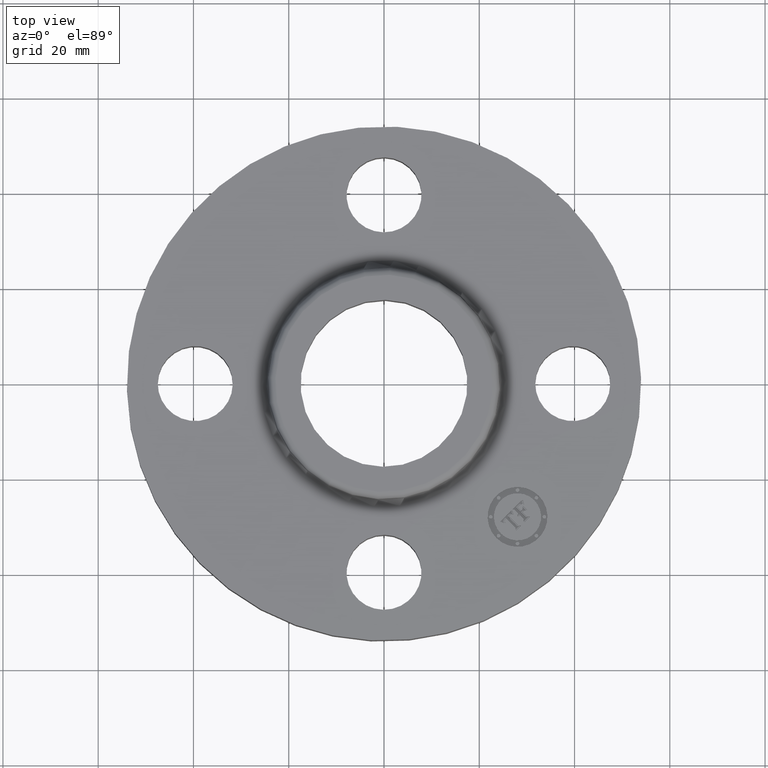
[diagram: clean part render]
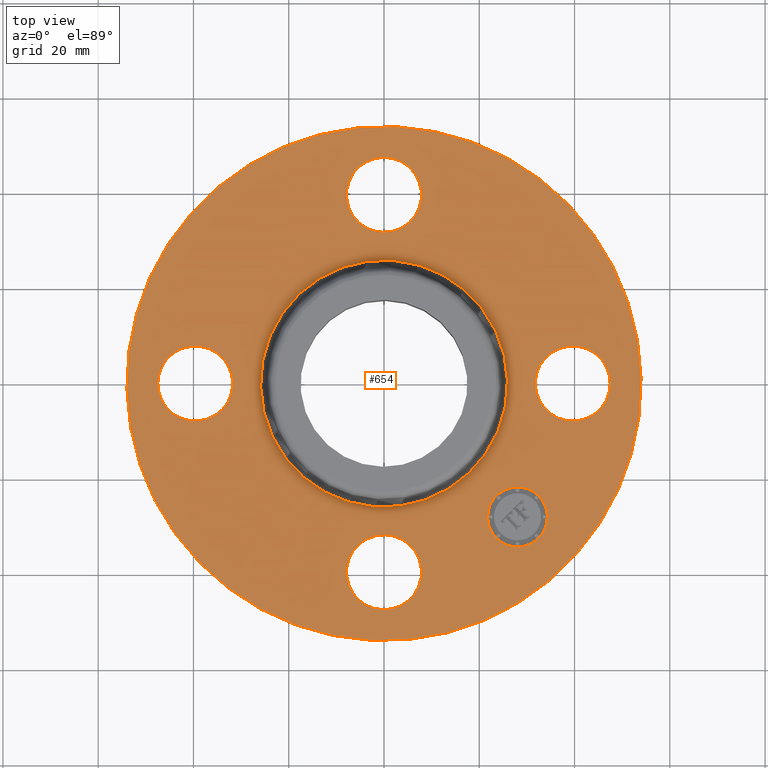
[diagram: same view with one face highlighted and labeled with its STEP entity id]
A machine part, top view. The second image highlights one B-rep face of the part: STEP entity #654.
In plain terms, the highlighted planar face has unit normal (0, 0, -1).
Its self-contained STEP definition (entity closure, byte-faithful):
#65=AXIS2_PLACEMENT_3D('Circle Axis2P3D',#63,#64,$) ;
#82=AXIS2_PLACEMENT_3D('Circle Axis2P3D',#80,#81,$) ;
#115=AXIS2_PLACEMENT_3D('Circle Axis2P3D',#113,#114,$) ;
#139=AXIS2_PLACEMENT_3D('Circle Axis2P3D',#137,#138,$) ;
#156=AXIS2_PLACEMENT_3D('Circle Axis2P3D',#154,#155,$) ;
#191=AXIS2_PLACEMENT_3D('Circle Axis2P3D',#189,#190,$) ;
#499=AXIS2_PLACEMENT_3D('Circle Axis2P3D',#497,#498,$) ;
#511=AXIS2_PLACEMENT_3D('Circle Axis2P3D',#509,#510,$) ;
#542=AXIS2_PLACEMENT_3D('Circle Axis2P3D',#540,#541,$) ;
#554=AXIS2_PLACEMENT_3D('Circle Axis2P3D',#552,#553,$) ;
#585=AXIS2_PLACEMENT_3D('Circle Axis2P3D',#583,#584,$) ;
#597=AXIS2_PLACEMENT_3D('Circle Axis2P3D',#595,#596,$) ;
#610=AXIS2_PLACEMENT_3D('Plane Axis2P3D',#607,#608,#609) ;
#638=AXIS2_PLACEMENT_3D('Circle Axis2P3D',#636,#637,$) ;
#647=AXIS2_PLACEMENT_3D('Circle Axis2P3D',#645,#646,$) ;
#46=CARTESIAN_POINT('Vertex',(1.28794940582,0.148621916968,0.560000000002)) ;
#60=CARTESIAN_POINT('Vertex',(1.83205059419,-0.148621916968,0.560000000002)) ;
#63=CARTESIAN_POINT('Axis2P3D Location',(1.56000000001,0.,0.560000000002)) ;
#80=CARTESIAN_POINT('Axis2P3D Location',(1.56000000001,0.,0.560000000002)) ;
#110=CARTESIAN_POINT('Vertex',(-1.01877926954,-1.86486294402,0.560000000002)) ;
#113=CARTESIAN_POINT('Axis2P3D Location',(0.,0.,0.560000000002)) ;
#117=CARTESIAN_POINT('Vertex',(1.01877926954,1.86486294402,0.560000000002)) ;
#137=CARTESIAN_POINT('Axis2P3D Location',(0.,0.,0.560000000002)) ;
#154=CARTESIAN_POINT('Axis2P3D Location',(0.,0.,0.560000000002)) ;
#158=CARTESIAN_POINT('Vertex',(0.489179920005,0.895437837278,0.560000000002)) ;
#160=CARTESIAN_POINT('Vertex',(-0.489179920005,-0.895437837278,0.560000000002)) ;
#189=CARTESIAN_POINT('Axis2P3D Location',(0.,0.,0.560000000002)) ;
#487=CARTESIAN_POINT('Vertex',(-0.148621916968,1.28794940582,0.560000000002)) ;
#494=CARTESIAN_POINT('Vertex',(0.148621916968,1.83205059419,0.560000000002)) ;
#497=CARTESIAN_POINT('Axis2P3D Location',(-2.86567351002E-016,1.56000000001,0.560000000002)) ;
#509=CARTESIAN_POINT('Axis2P3D Location',(-2.86567351002E-016,1.56000000001,0.560000000002)) ;
#530=CARTESIAN_POINT('Vertex',(-1.28794940582,-0.148621916968,0.560000000002)) ;
#537=CARTESIAN_POINT('Vertex',(-1.83205059419,0.148621916968,0.560000000002)) ;
#540=CARTESIAN_POINT('Axis2P3D Location',(-1.56000000001,-1.91044900668E-016,0.560000000002)) ;
#552=CARTESIAN_POINT('Axis2P3D Location',(-1.56000000001,-1.91044900668E-016,0.560000000002)) ;
#573=CARTESIAN_POINT('Vertex',(0.148621916968,-1.28794940582,0.560000000002)) ;
#580=CARTESIAN_POINT('Vertex',(-0.148621916968,-1.83205059419,0.560000000002)) ;
#583=CARTESIAN_POINT('Axis2P3D Location',(-1.84218784217E-016,-1.56000000001,0.560000000002)) ;
#595=CARTESIAN_POINT('Axis2P3D Location',(-1.84218784217E-016,-1.56000000001,0.560000000002)) ;
#607=CARTESIAN_POINT('Axis2P3D Location',(0.,2.12500000001,0.560000000002)) ;
#636=CARTESIAN_POINT('Axis2P3D Location',(1.10308657866,-1.10308657866,0.560000000002)) ;
#640=CARTESIAN_POINT('Vertex',(1.278095507,-0.928077650311,0.560000000002)) ;
#642=CARTESIAN_POINT('Vertex',(0.928077650311,-1.278095507,0.560000000002)) ;
#645=CARTESIAN_POINT('Axis2P3D Location',(1.10308657866,-1.10308657866,0.560000000002)) ;
#64=DIRECTION('Axis2P3D Direction',(0.,-0.,-0.0393700787402)) ;
#81=DIRECTION('Axis2P3D Direction',(0.,-0.,-0.0393700787402)) ;
#114=DIRECTION('Axis2P3D Direction',(0.,0.,-0.0393700787402)) ;
#138=DIRECTION('Axis2P3D Direction',(0.,0.,-0.0393700787402)) ;
#155=DIRECTION('Axis2P3D Direction',(0.,0.,-0.0393700787402)) ;
#190=DIRECTION('Axis2P3D Direction',(0.,0.,-0.0393700787402)) ;
#498=DIRECTION('Axis2P3D Direction',(0.,0.,-0.0393700787402)) ;
#510=DIRECTION('Axis2P3D Direction',(0.,0.,-0.0393700787402)) ;
#541=DIRECTION('Axis2P3D Direction',(-0.,0.,-0.0393700787402)) ;
#553=DIRECTION('Axis2P3D Direction',(-0.,0.,-0.0393700787402)) ;
#584=DIRECTION('Axis2P3D Direction',(0.,-0.,-0.0393700787402)) ;
#596=DIRECTION('Axis2P3D Direction',(0.,-0.,-0.0393700787402)) ;
#608=DIRECTION('Axis2P3D Direction',(0.,0.,-0.0393700787402)) ;
#609=DIRECTION('Axis2P3D XDirection',(0.0393700787402,0.,0.)) ;
#637=DIRECTION('Axis2P3D Direction',(0.,0.,-0.0393700787402)) ;
#646=DIRECTION('Axis2P3D Direction',(0.,0.,-0.0393700787402)) ;
#613=ORIENTED_EDGE('',*,*,#141,.F.) ;
#614=ORIENTED_EDGE('',*,*,#119,.F.) ;
#617=ORIENTED_EDGE('',*,*,#67,.T.) ;
#618=ORIENTED_EDGE('',*,*,#84,.T.) ;
#621=ORIENTED_EDGE('',*,*,#193,.T.) ;
#622=ORIENTED_EDGE('',*,*,#162,.T.) ;
#625=ORIENTED_EDGE('',*,*,#599,.T.) ;
#626=ORIENTED_EDGE('',*,*,#587,.T.) ;
#629=ORIENTED_EDGE('',*,*,#556,.T.) ;
#630=ORIENTED_EDGE('',*,*,#544,.T.) ;
#633=ORIENTED_EDGE('',*,*,#513,.T.) ;
#634=ORIENTED_EDGE('',*,*,#501,.T.) ;
#651=ORIENTED_EDGE('',*,*,#644,.T.) ;
#652=ORIENTED_EDGE('',*,*,#649,.T.) ;
#619=FACE_BOUND('',#616,.T.) ;
#623=FACE_BOUND('',#620,.T.) ;
#627=FACE_BOUND('',#624,.T.) ;
#631=FACE_BOUND('',#628,.T.) ;
#635=FACE_BOUND('',#632,.T.) ;
#653=FACE_BOUND('',#650,.T.) ;
#654=ADVANCED_FACE('PartBody',(#615,#619,#623,#627,#631,#635,#653),#611,.F.) ;
#66=CIRCLE('generated circle',#65,0.310000000001) ;
#83=CIRCLE('generated circle',#82,0.310000000001) ;
#116=CIRCLE('generated circle',#115,2.12500000001) ;
#140=CIRCLE('generated circle',#139,2.12500000001) ;
#157=CIRCLE('generated circle',#156,1.02034597787) ;
#192=CIRCLE('generated circle',#191,1.02034597787) ;
#500=CIRCLE('generated circle',#499,0.310000000001) ;
#512=CIRCLE('generated circle',#511,0.310000000001) ;
#543=CIRCLE('generated circle',#542,0.310000000001) ;
#555=CIRCLE('generated circle',#554,0.310000000001) ;
#586=CIRCLE('generated circle',#585,0.310000000001) ;
#598=CIRCLE('generated circle',#597,0.310000000001) ;
#639=CIRCLE('generated circle',#638,0.247500000001) ;
#648=CIRCLE('generated circle',#647,0.247500000001) ;
#67=EDGE_CURVE('',#47,#61,#66,.T.) ;
#84=EDGE_CURVE('',#61,#47,#83,.T.) ;
#119=EDGE_CURVE('',#111,#118,#116,.T.) ;
#141=EDGE_CURVE('',#118,#111,#140,.T.) ;
#162=EDGE_CURVE('',#159,#161,#157,.T.) ;
#193=EDGE_CURVE('',#161,#159,#192,.T.) ;
#501=EDGE_CURVE('',#488,#495,#500,.T.) ;
#513=EDGE_CURVE('',#495,#488,#512,.T.) ;
#544=EDGE_CURVE('',#531,#538,#543,.T.) ;
#556=EDGE_CURVE('',#538,#531,#555,.T.) ;
#587=EDGE_CURVE('',#574,#581,#586,.T.) ;
#599=EDGE_CURVE('',#581,#574,#598,.T.) ;
#644=EDGE_CURVE('',#641,#643,#639,.T.) ;
#649=EDGE_CURVE('',#643,#641,#648,.T.) ;
#612=EDGE_LOOP('',(#613,#614)) ;
#616=EDGE_LOOP('',(#617,#618)) ;
#620=EDGE_LOOP('',(#621,#622)) ;
#624=EDGE_LOOP('',(#625,#626)) ;
#628=EDGE_LOOP('',(#629,#630)) ;
#632=EDGE_LOOP('',(#633,#634)) ;
#650=EDGE_LOOP('',(#651,#652)) ;
#615=FACE_OUTER_BOUND('',#612,.T.) ;
#611=PLANE('',#610) ;
#47=VERTEX_POINT('',#46) ;
#61=VERTEX_POINT('',#60) ;
#111=VERTEX_POINT('',#110) ;
#118=VERTEX_POINT('',#117) ;
#159=VERTEX_POINT('',#158) ;
#161=VERTEX_POINT('',#160) ;
#488=VERTEX_POINT('',#487) ;
#495=VERTEX_POINT('',#494) ;
#531=VERTEX_POINT('',#530) ;
#538=VERTEX_POINT('',#537) ;
#574=VERTEX_POINT('',#573) ;
#581=VERTEX_POINT('',#580) ;
#641=VERTEX_POINT('',#640) ;
#643=VERTEX_POINT('',#642) ;